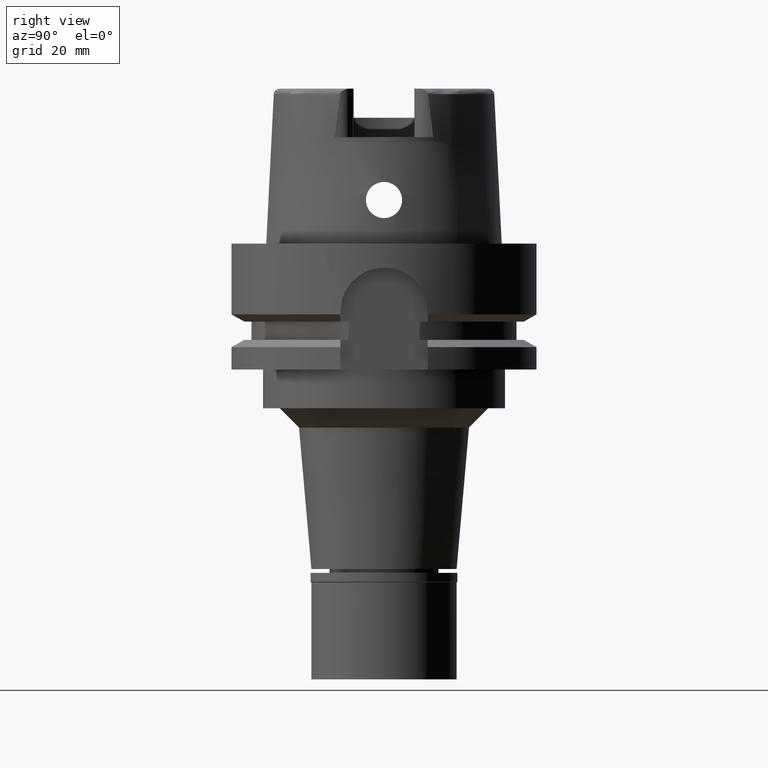
[diagram: clean part render]
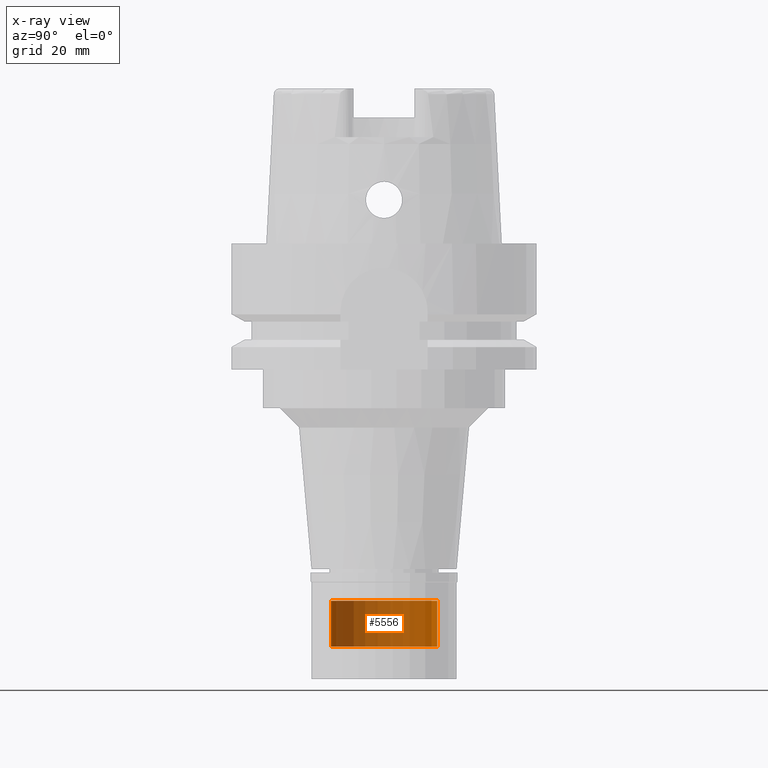
[diagram: x-ray — body ghosted, one internal face saturated and labeled with its STEP entity id]
A machine part, right view, then the same camera in x-ray: the body is ghosted and one INTERNAL B-rep face — a face not visible from any outside direction — is saturated and labeled: STEP entity #5556.
In plain terms, the highlighted cylindrical surface (partial cylindrical patch) has radius 11 mm, axis along (0, 0, 1).
Its self-contained STEP definition (entity closure, byte-faithful):
#59 = VERTEX_POINT ( 'NONE', #3424 ) ;
#247 = VERTEX_POINT ( 'NONE', #3027 ) ;
#549 = EDGE_CURVE ( 'NONE', #4732, #247, #4668, .T. ) ;
#889 = EDGE_CURVE ( 'NONE', #59, #4976, #1995, .T. ) ;
#949 = CYLINDRICAL_SURFACE ( 'NONE', #4107, 11.00000000000000000 ) ;
#960 = AXIS2_PLACEMENT_3D ( 'NONE', #4168, #5459, #3750 ) ;
#1047 = CARTESIAN_POINT ( 'NONE',  ( 0.0000000000000000000, -11.00000000000000000, -73.80000000000001137 ) ) ;
#1352 = CARTESIAN_POINT ( 'NONE',  ( 0.0000000000000000000, 11.00000000000000000, -73.80000000000001137 ) ) ;
#1825 = FACE_OUTER_BOUND ( 'NONE', #4843, .T. ) ;
#1995 = CIRCLE ( 'NONE', #3715, 11.00000000000000000 ) ;
#2119 = VECTOR ( 'NONE', #2765, 1000.000000000000000 ) ;
#2493 = DIRECTION ( 'NONE',  ( 0.0000000000000000000, -1.000000000000000000, 0.0000000000000000000 ) ) ;
#2696 = CARTESIAN_POINT ( 'NONE',  ( 0.0000000000000000000, 0.0000000000000000000, 0.0000000000000000000 ) ) ;
#2765 = DIRECTION ( 'NONE',  ( 0.0000000000000000000, 0.0000000000000000000, -1.000000000000000000 ) ) ;
#3027 = CARTESIAN_POINT ( 'NONE',  ( 0.0000000000000000000, -11.00000000000000000, -83.29999999999999716 ) ) ;
#3076 = ORIENTED_EDGE ( 'NONE', *, *, #3182, .F. ) ;
#3174 = ORIENTED_EDGE ( 'NONE', *, *, #4861, .T. ) ;
#3182 = EDGE_CURVE ( 'NONE', #59, #247, #3196, .T. ) ;
#3196 = LINE ( 'NONE', #1047, #2119 ) ;
#3424 = CARTESIAN_POINT ( 'NONE',  ( 0.0000000000000000000, -11.00000000000000000, -73.80000000000001137 ) ) ;
#3566 = VECTOR ( 'NONE', #3888, 1000.000000000000000 ) ;
#3709 = CARTESIAN_POINT ( 'NONE',  ( 0.0000000000000000000, 0.0000000000000000000, -73.80000000000001137 ) ) ;
#3715 = AXIS2_PLACEMENT_3D ( 'NONE', #3709, #5423, #2493 ) ;
#3750 = DIRECTION ( 'NONE',  ( 0.0000000000000000000, 1.000000000000000000, 0.0000000000000000000 ) ) ;
#3779 = CARTESIAN_POINT ( 'NONE',  ( 0.0000000000000000000, 11.00000000000000000, -83.29999999999999716 ) ) ;
#3888 = DIRECTION ( 'NONE',  ( 0.0000000000000000000, 0.0000000000000000000, -1.000000000000000000 ) ) ;
#4027 = DIRECTION ( 'NONE',  ( 0.0000000000000000000, 0.0000000000000000000, 1.000000000000000000 ) ) ;
#4032 = CARTESIAN_POINT ( 'NONE',  ( 0.0000000000000000000, 11.00000000000000000, -73.80000000000001137 ) ) ;
#4107 = AXIS2_PLACEMENT_3D ( 'NONE', #2696, #4027, #5340 ) ;
#4168 = CARTESIAN_POINT ( 'NONE',  ( 0.0000000000000000000, 0.0000000000000000000, -83.29999999999999716 ) ) ;
#4525 = ORIENTED_EDGE ( 'NONE', *, *, #549, .T. ) ;
#4668 = CIRCLE ( 'NONE', #960, 11.00000000000000000 ) ;
#4732 = VERTEX_POINT ( 'NONE', #3779 ) ;
#4755 = LINE ( 'NONE', #1352, #3566 ) ;
#4843 = EDGE_LOOP ( 'NONE', ( #4525, #3076, #5070, #3174 ) ) ;
#4861 = EDGE_CURVE ( 'NONE', #4976, #4732, #4755, .T. ) ;
#4976 = VERTEX_POINT ( 'NONE', #4032 ) ;
#5070 = ORIENTED_EDGE ( 'NONE', *, *, #889, .T. ) ;
#5340 = DIRECTION ( 'NONE',  ( 0.0000000000000000000, 1.000000000000000000, 0.0000000000000000000 ) ) ;
#5423 = DIRECTION ( 'NONE',  ( 0.0000000000000000000, 0.0000000000000000000, -1.000000000000000000 ) ) ;
#5459 = DIRECTION ( 'NONE',  ( 0.0000000000000000000, 0.0000000000000000000, 1.000000000000000000 ) ) ;
#5556 = ADVANCED_FACE ( 'NONE', ( #1825 ), #949, .T. ) ;